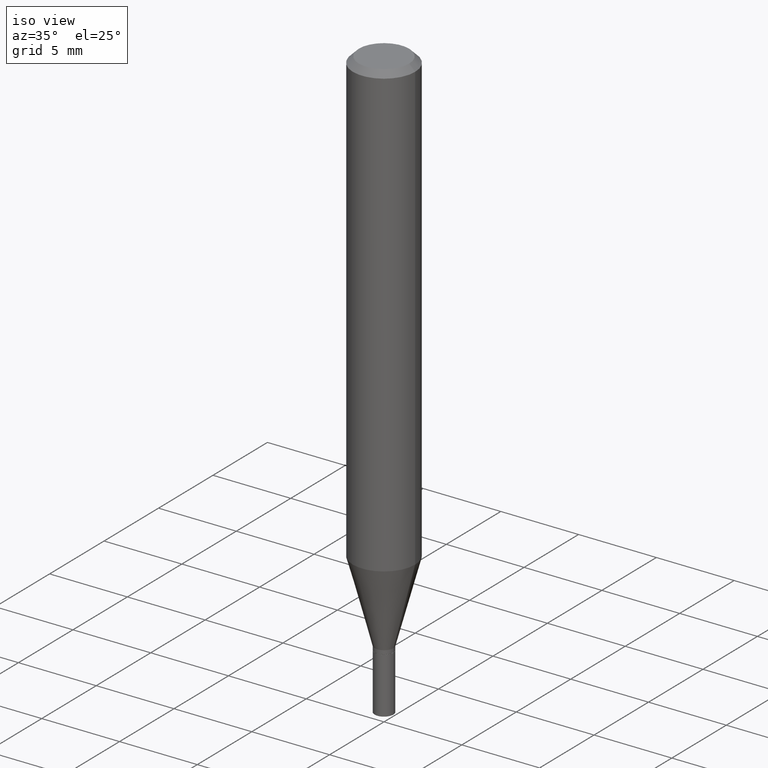
[diagram: clean part render]
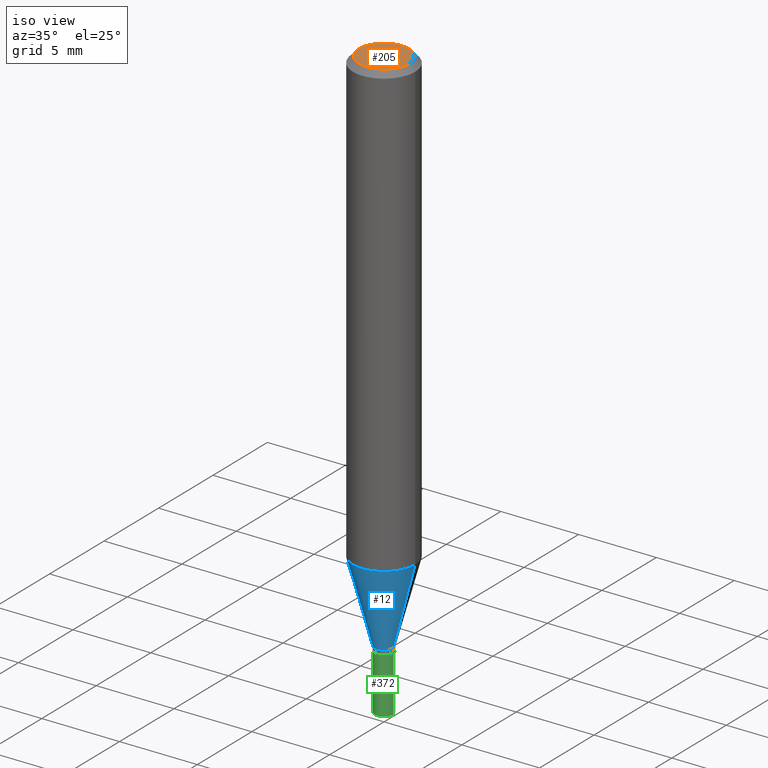
[diagram: same view with three faces highlighted in distinct colors, each labeled with its STEP entity id]
A machine part, iso view with three faces highlighted in distinct colors.
Their STEP definitions:

[orange] entity #205 — the highlighted planar face has unit normal (0, -0, -1).
#57 = PLANE ( 'NONE',  #272 ) ;
#99 = AXIS2_PLACEMENT_3D ( 'NONE', #400, #255, #279 ) ;
#134 = ORIENTED_EDGE ( 'NONE', *, *, #346, .T. ) ;
#179 = DIRECTION ( 'NONE',  ( 1.000000000000000000, -6.982962677686265922E-15, 4.852736867747365646E-29 ) ) ;
#188 = VERTEX_POINT ( 'NONE', #232 ) ;
#205 = ADVANCED_FACE ( 'NONE', ( #375 ), #57, .F. ) ;
#208 = DIRECTION ( 'NONE',  ( 2.438088387897960049E-29, -3.491481338843145188E-15, -1.000000000000000000 ) ) ;
#227 = CIRCLE ( 'NONE', #343, 0.06375000000000000111 ) ;
#229 = DIRECTION ( 'NONE',  ( -1.000000000000000000, 6.982962677686265922E-15, -4.876176775795935793E-29 ) ) ;
#232 = CARTESIAN_POINT ( 'NONE',  ( -0.06375000000000000111, 4.713499807438221352E-16, -4.447989849365133964E-16 ) ) ;
#242 = CIRCLE ( 'NONE', #99, 0.06375000000000000111 ) ;
#255 = DIRECTION ( 'NONE',  ( -2.445468806185136597E-29, 3.491481338843145583E-15, 1.000000000000000000 ) ) ;
#265 = EDGE_LOOP ( 'NONE', ( #134, #461 ) ) ;
#272 = AXIS2_PLACEMENT_3D ( 'NONE', #277, #208, #229 ) ;
#277 = CARTESIAN_POINT ( 'NONE',  ( 4.451638707024993845E-16, 0.06375000000000000111, -4.449814278195055523E-16 ) ) ;
#279 = DIRECTION ( 'NONE',  ( 1.000000000000000000, -6.982962677686265922E-15, 4.852736867747365646E-29 ) ) ;
#286 = VERTEX_POINT ( 'NONE', #398 ) ;
#292 = CARTESIAN_POINT ( 'NONE',  ( 1.087742042685048154E-44, -1.553007355442198790E-30, -4.447989849365101424E-16 ) ) ;
#343 = AXIS2_PLACEMENT_3D ( 'NONE', #292, #390, #179 ) ;
#346 = EDGE_CURVE ( 'NONE', #188, #286, #227, .T. ) ;
#375 = FACE_OUTER_BOUND ( 'NONE', #265, .T. ) ;
#390 = DIRECTION ( 'NONE',  ( -2.445468806185136597E-29, 3.491481338843145583E-15, 1.000000000000000000 ) ) ;
#398 = CARTESIAN_POINT ( 'NONE',  ( 0.06375000000000000111, -5.149965923825459168E-16, -4.447989849365068883E-16 ) ) ;
#400 = CARTESIAN_POINT ( 'NONE',  ( 1.087742042685048154E-44, -1.553007355442198790E-30, -4.447989849365101424E-16 ) ) ;
#425 = EDGE_CURVE ( 'NONE', #286, #188, #242, .T. ) ;
#461 = ORIENTED_EDGE ( 'NONE', *, *, #425, .T. ) ;

[blue] entity #12 — the highlighted conical surface has half-angle 15 deg.
#3 = CARTESIAN_POINT ( 'NONE',  ( -0.07875000000000000056, -3.428338666223679315E-15, -1.142177397962576890 ) ) ;
#10 = CARTESIAN_POINT ( 'NONE',  ( 3.296491950737564433E-29, -4.706516844760561370E-15, -1.348000000000000309 ) ) ;
#12 = ADVANCED_FACE ( 'NONE', ( #50 ), #296, .T. ) ;
#43 = EDGE_CURVE ( 'NONE', #381, #78, #152, .T. ) ;
#50 = FACE_OUTER_BOUND ( 'NONE', #184, .T. ) ;
#78 = VERTEX_POINT ( 'NONE', #401 ) ;
#111 = CIRCLE ( 'NONE', #119, 0.07875000000000000056 ) ;
#119 = AXIS2_PLACEMENT_3D ( 'NONE', #447, #453, #130 ) ;
#129 = ORIENTED_EDGE ( 'NONE', *, *, #43, .T. ) ;
#130 = DIRECTION ( 'NONE',  ( 1.000000000000000000, -6.982962677686268288E-15, 0.000000000000000000 ) ) ;
#133 = AXIS2_PLACEMENT_3D ( 'NONE', #10, #369, #256 ) ;
#141 = DIRECTION ( 'NONE',  ( -2.445468806185136597E-29, 3.491481338843145583E-15, 1.000000000000000000 ) ) ;
#145 = DIRECTION ( 'NONE',  ( 1.000000000000000000, -6.982962677686279332E-15, 0.000000000000000000 ) ) ;
#152 = LINE ( 'NONE', #446, #167 ) ;
#167 = VECTOR ( 'NONE', #437, 39.37007874015747433 ) ;
#184 = EDGE_LOOP ( 'NONE', ( #363, #452, #129, #420 ) ) ;
#185 = CARTESIAN_POINT ( 'NONE',  ( 0.02359999999999993006, -4.871314763953956829E-15, -1.348000000000000309 ) ) ;
#216 = CARTESIAN_POINT ( 'NONE',  ( -0.02359999999999993006, -4.538828759121177262E-15, -1.348000000000000309 ) ) ;
#243 = LINE ( 'NONE', #216, #365 ) ;
#248 = DIRECTION ( 'NONE',  ( -0.2588190451025213501, 5.211531920934551042E-15, 0.9659258262890682012 ) ) ;
#256 = DIRECTION ( 'NONE',  ( 1.000000000000000000, -6.982962677686279332E-15, 0.000000000000000000 ) ) ;
#262 = EDGE_CURVE ( 'NONE', #345, #78, #111, .T. ) ;
#284 = CARTESIAN_POINT ( 'NONE',  ( 3.296491950737564433E-29, -4.706516844760561370E-15, -1.348000000000000309 ) ) ;
#296 = CONICAL_SURFACE ( 'NONE', #133, 0.02359999999999993006, 0.2617993877991500740 ) ;
#310 = CIRCLE ( 'NONE', #373, 0.02359999999999993006 ) ;
#344 = EDGE_CURVE ( 'NONE', #392, #345, #243, .T. ) ;
#345 = VERTEX_POINT ( 'NONE', #3 ) ;
#355 = EDGE_CURVE ( 'NONE', #392, #381, #310, .T. ) ;
#363 = ORIENTED_EDGE ( 'NONE', *, *, #344, .F. ) ;
#365 = VECTOR ( 'NONE', #248, 39.37007874015747433 ) ;
#369 = DIRECTION ( 'NONE',  ( -2.445468806185136597E-29, 3.491481338843145583E-15, 1.000000000000000000 ) ) ;
#373 = AXIS2_PLACEMENT_3D ( 'NONE', #284, #141, #145 ) ;
#381 = VERTEX_POINT ( 'NONE', #185 ) ;
#392 = VERTEX_POINT ( 'NONE', #393 ) ;
#393 = CARTESIAN_POINT ( 'NONE',  ( -0.02359999999999993006, -3.983583712672428880E-15, -1.348000000000000309 ) ) ;
#401 = CARTESIAN_POINT ( 'NONE',  ( 0.07875000000000000056, -4.537799381502551857E-15, -1.142177397962576890 ) ) ;
#420 = ORIENTED_EDGE ( 'NONE', *, *, #262, .F. ) ;
#437 = DIRECTION ( 'NONE',  ( 0.2588190451025213501, 1.565188264969621968E-15, 0.9659258262890682012 ) ) ;
#446 = CARTESIAN_POINT ( 'NONE',  ( 0.02359999999999993006, -4.871314763953956829E-15, -1.348000000000000309 ) ) ;
#447 = CARTESIAN_POINT ( 'NONE',  ( 2.793159197847188577E-29, -3.987891070634758511E-15, -1.142177397962576890 ) ) ;
#452 = ORIENTED_EDGE ( 'NONE', *, *, #355, .T. ) ;
#453 = DIRECTION ( 'NONE',  ( -2.445468806185136597E-29, 3.491481338843145583E-15, 1.000000000000000000 ) ) ;

[green] entity #372 — the highlighted cylindrical surface (edge-blend (fillet) strip) has radius 0.5994 mm, axis along (-0, 0, 1).
#2 = EDGE_LOOP ( 'NONE', ( #65, #244, #383, #230 ) ) ;
#13 = VERTEX_POINT ( 'NONE', #121 ) ;
#40 = AXIS2_PLACEMENT_3D ( 'NONE', #182, #72, #212 ) ;
#45 = CYLINDRICAL_SURFACE ( 'NONE', #139, 0.02360000000000000292 ) ;
#52 = VERTEX_POINT ( 'NONE', #190 ) ;
#56 = LINE ( 'NONE', #125, #240 ) ;
#65 = ORIENTED_EDGE ( 'NONE', *, *, #164, .F. ) ;
#71 = FACE_OUTER_BOUND ( 'NONE', #2, .T. ) ;
#72 = DIRECTION ( 'NONE',  ( -2.445468806185136597E-29, 3.491481338843145583E-15, 1.000000000000000000 ) ) ;
#77 = DIRECTION ( 'NONE',  ( 1.000000000000000000, -6.982962677686258033E-15, 0.000000000000000000 ) ) ;
#96 = DIRECTION ( 'NONE',  ( -2.445468806185136877E-29, 3.491481338843145188E-15, 1.000000000000000000 ) ) ;
#98 = VECTOR ( 'NONE', #307, 39.37007874015748143 ) ;
#110 = CARTESIAN_POINT ( 'NONE',  ( 0.000000000000000000, 0.000000000000000000, 0.000000000000000000 ) ) ;
#121 = CARTESIAN_POINT ( 'NONE',  ( 0.02360000000000000292, -4.907277021744040592E-15, -1.358300000000000063 ) ) ;
#125 = CARTESIAN_POINT ( 'NONE',  ( -0.02360000000000000292, 1.676880856393836646E-16, -1.160868681300157803E-30 ) ) ;
#139 = AXIS2_PLACEMENT_3D ( 'NONE', #110, #214, #288 ) ;
#164 = EDGE_CURVE ( 'NONE', #394, #52, #56, .T. ) ;
#177 = DIRECTION ( 'NONE',  ( -2.445468806185136597E-29, 3.491481338843145583E-15, 1.000000000000000000 ) ) ;
#182 = CARTESIAN_POINT ( 'NONE',  ( 3.321680279441271211E-29, -4.742479102550645133E-15, -1.358300000000000063 ) ) ;
#190 = CARTESIAN_POINT ( 'NONE',  ( -0.02360000000000000292, -4.822162469768297941E-15, -1.358300000000000063 ) ) ;
#203 = CIRCLE ( 'NONE', #336, 0.02360000000000000292 ) ;
#207 = CIRCLE ( 'NONE', #40, 0.02360000000000000292 ) ;
#212 = DIRECTION ( 'NONE',  ( 1.000000000000000000, -6.982962677686258033E-15, 0.000000000000000000 ) ) ;
#214 = DIRECTION ( 'NONE',  ( -2.445468806185136597E-29, 3.491481338843145583E-15, 1.000000000000000000 ) ) ;
#230 = ORIENTED_EDGE ( 'NONE', *, *, #413, .F. ) ;
#240 = VECTOR ( 'NONE', #96, 39.37007874015748143 ) ;
#244 = ORIENTED_EDGE ( 'NONE', *, *, #353, .T. ) ;
#252 = EDGE_CURVE ( 'NONE', #378, #13, #301, .T. ) ;
#288 = DIRECTION ( 'NONE',  ( 1.000000000000000000, -6.982962677686267499E-15, 4.876176775795935793E-29 ) ) ;
#301 = LINE ( 'NONE', #460, #98 ) ;
#307 = DIRECTION ( 'NONE',  ( -2.445468806185136877E-29, 3.491481338843145188E-15, 1.000000000000000000 ) ) ;
#336 = AXIS2_PLACEMENT_3D ( 'NONE', #362, #177, #77 ) ;
#353 = EDGE_CURVE ( 'NONE', #394, #378, #203, .T. ) ;
#362 = CARTESIAN_POINT ( 'NONE',  ( 3.668203209277704895E-29, -5.237222008264718177E-15, -1.500000000000000222 ) ) ;
#372 = ADVANCED_FACE ( 'NONE', ( #71 ), #45, .T. ) ;
#378 = VERTEX_POINT ( 'NONE', #395 ) ;
#383 = ORIENTED_EDGE ( 'NONE', *, *, #252, .T. ) ;
#394 = VERTEX_POINT ( 'NONE', #434 ) ;
#395 = CARTESIAN_POINT ( 'NONE',  ( 0.02360000000000000292, -5.402019927458114424E-15, -1.500000000000000222 ) ) ;
#413 = EDGE_CURVE ( 'NONE', #52, #13, #207, .T. ) ;
#434 = CARTESIAN_POINT ( 'NONE',  ( -0.02360000000000000292, -4.822162469768297941E-15, -1.500000000000000222 ) ) ;
#460 = CARTESIAN_POINT ( 'NONE',  ( 0.02360000000000000292, -1.647979191933959273E-16, 1.150777719087840955E-30 ) ) ;